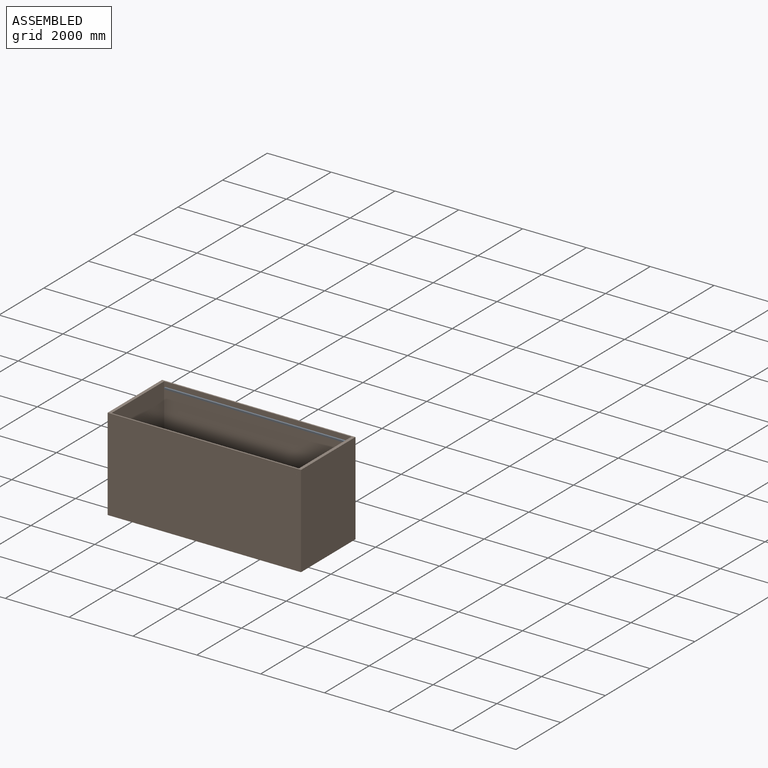
[diagram: assembled view]
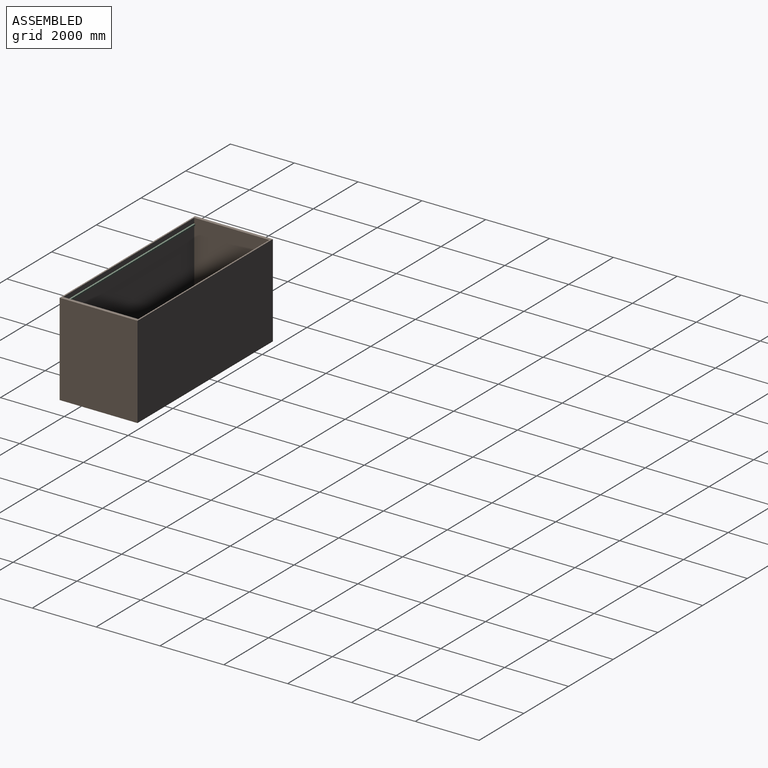
[diagram: assembled view, second angle]
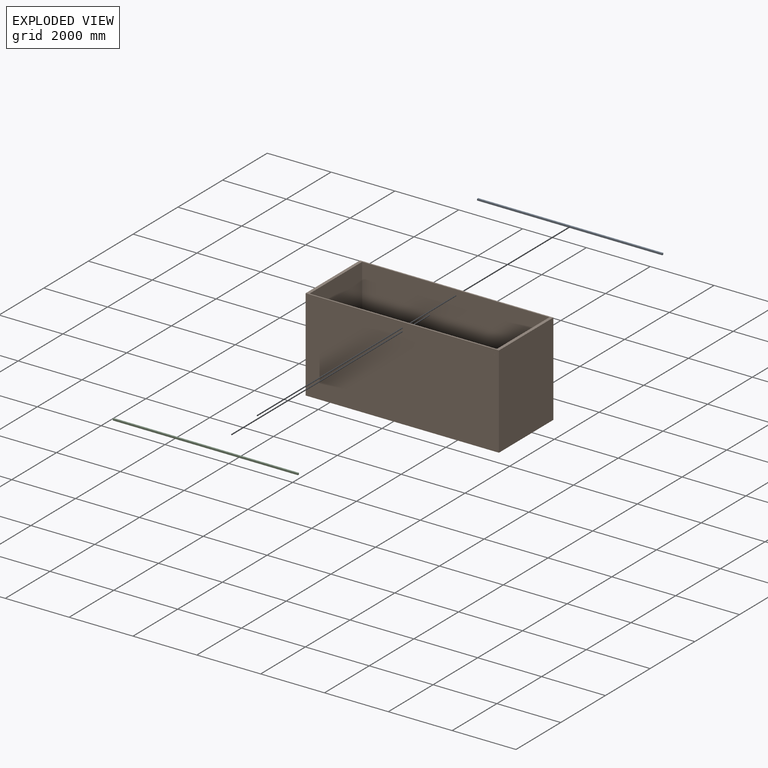
[diagram: exploded view]
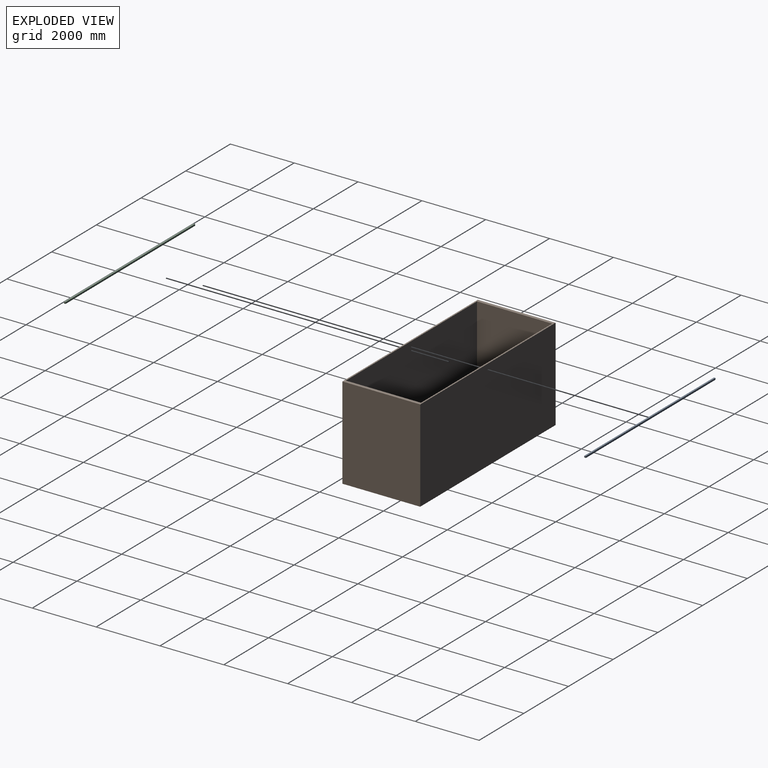
[diagram: exploded view, second angle]
ASSEMBLY  parts=3 mates=2
PART A: 6 faces, bbox 5800x50x50 mm
  f0: plane 5800x50mm, normal (0,-1,0), area 290000mm2, adj f1,f3,f4,f5
  f1: plane 5800x50mm, normal (0,0,-1), area 290000mm2, adj f0,f2,f4,f5
  f2: plane 5800x50mm, normal (0,1,0), area 290000mm2, adj f1,f3,f4,f5
  f3: plane 5800x50mm, normal (0,0,1), area 290000mm2, adj f0,f2,f4,f5
  f4: plane 50x50mm, normal (1,0,0), area 2500mm2, adj f0,f1,f2,f3
  f5: plane 50x50mm, normal (-1,0,0), area 2500mm2, adj f0,f1,f2,f3
PART B: 15 faces, bbox 6058x2438x2896 mm
  f0: plane 2896x2438mm, normal (-1,0,0), area 7060448mm2, adj f1,f3,f4,f5
  f1: plane 6058x2896mm, normal (0,-1,0), area 17543928.7mm2, adj f0,f2,f4,f5,f13,f14
  f2: plane 2896x2438mm, normal (1,0,0), area 7060448mm2, adj f1,f3,f4,f5
  f3: plane 6058x2896mm, normal (0,1,0), area 17543928.7mm2, adj f0,f2,f4,f5,f11,f12
  f4: plane 6058x2438mm, normal (0,0,1), area 970220mm2, adj f0,f1,f2,f3,f6,f7,f8,f9
  f5: plane 6058x2438mm, normal (0,0,-1), area 14769404mm2, adj f0,f1,f2,f3
  f6: plane 5867x2650mm, normal (0,1,0), area 15547510.7mm2, adj f4,f7,f9,f10,f13,f14
  f7: plane 2650x2352mm, normal (-1,0,0), area 6232800mm2, adj f4,f6,f8,f10
  f8: plane 5867x2650mm, normal (0,-1,0), area 15547510.7mm2, adj f4,f7,f9,f10,f11,f12
  f9: plane 2650x2352mm, normal (1,0,0), area 6232800mm2, adj f4,f6,f8,f10
  f10: plane 5867x2352mm, normal (0,0,1), area 13799184mm2, adj f6,f7,f8,f9
  f11: cylinder r=2.5mm len=43mm, axis (0,-1,0), area 675.4mm2, adj f3,f8
  f12: cylinder r=2.5mm len=43mm, axis (0,-1,0), area 675.4mm2, adj f3,f8
  f13: cylinder r=2.5mm len=43mm, axis (0,-1,0), area 675.4mm2, adj f1,f6
  f14: cylinder r=2.5mm len=43mm, axis (0,-1,0), area 675.4mm2, adj f1,f6
PART C: same geometry as A
PLACE A t=(1509.15,1808.1,3342.14)mm
PLACE B t=(1380.15,-536.9,646.14)mm
PLACE C t=(1509.15,-493.9,3342.14)mm
MATE fastened C.f0 <-> B.f12  axis (0,-1,0) through (1509.15,-493.9,3392.14)mm
MATE fastened A.f2 <-> B.f12  axis (0,1,0) through (1509.15,1858.1,3392.14)mm
